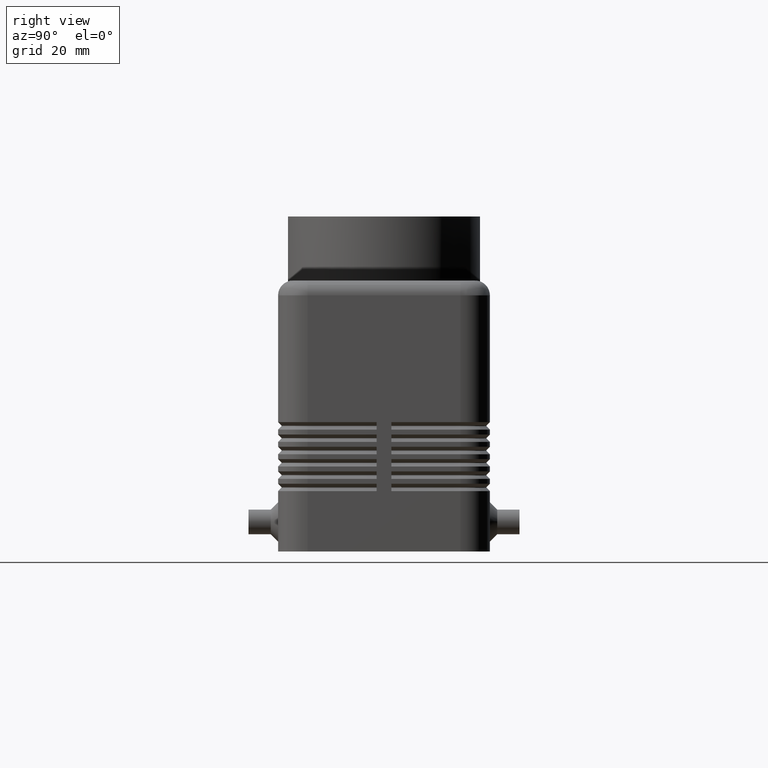
[diagram: clean part render]
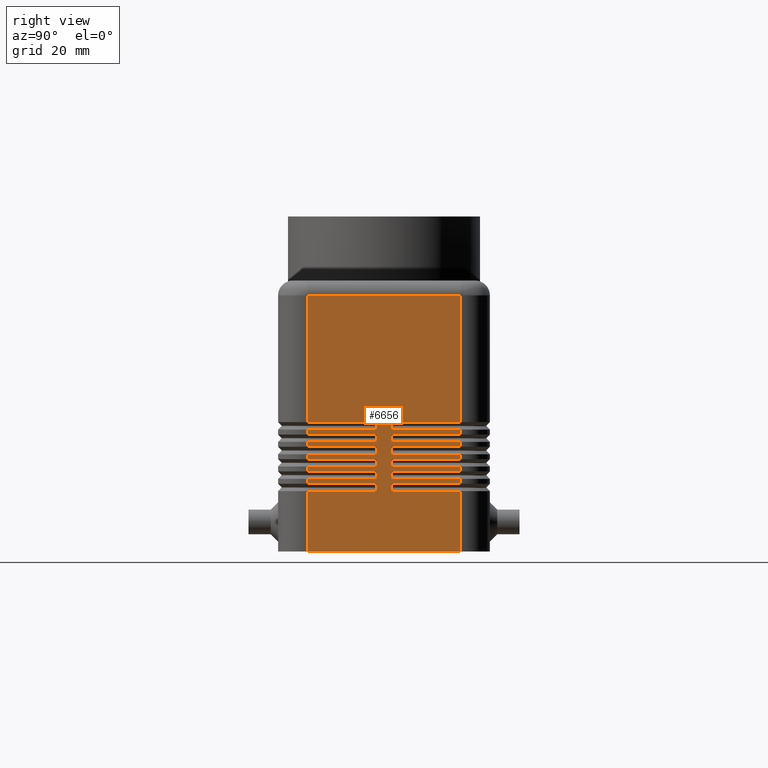
[diagram: same view with one face highlighted and labeled with its STEP entity id]
A machine part, right view. The second image highlights one B-rep face of the part: STEP entity #6656.
In plain terms, the highlighted planar face has unit normal (1, 0, 0).
Its self-contained STEP definition (entity closure, byte-faithful):
#241=CARTESIAN_POINT('',(60.0,-15.499999999999998,13.750000000000021));
#242=VERTEX_POINT('',#241);
#481=CARTESIAN_POINT('',(60.0,-15.499999999999998,16.250000000000021));
#482=VERTEX_POINT('',#481);
#709=CARTESIAN_POINT('',(60.0,-15.499999999999998,18.750000000000021));
#710=VERTEX_POINT('',#709);
#937=CARTESIAN_POINT('',(60.0,-15.499999999999998,21.250000000000021));
#938=VERTEX_POINT('',#937);
#1165=CARTESIAN_POINT('',(60.0,-15.499999999999998,23.750000000000021));
#1166=VERTEX_POINT('',#1165);
#1435=CARTESIAN_POINT('',(60.0,-15.499999999999998,26.250000000000021));
#1436=VERTEX_POINT('',#1435);
#1851=CARTESIAN_POINT('',(60.0,15.499999999999998,12.250000000000004));
#1852=VERTEX_POINT('',#1851);
#2413=CARTESIAN_POINT('',(60.0,15.499999999999998,14.750000000000021));
#2414=VERTEX_POINT('',#2413);
#2557=CARTESIAN_POINT('',(60.0,15.499999999999998,17.250000000000021));
#2558=VERTEX_POINT('',#2557);
#2701=CARTESIAN_POINT('',(60.0,15.499999999999998,19.750000000000018));
#2702=VERTEX_POINT('',#2701);
#2845=CARTESIAN_POINT('',(60.0,15.499999999999998,22.250000000000021));
#2846=VERTEX_POINT('',#2845);
#2999=CARTESIAN_POINT('',(60.0,15.499999999999998,24.750000000000021));
#3000=VERTEX_POINT('',#2999);
#4046=CARTESIAN_POINT('',(59.999999999999993,-15.499999999999998,52.0));
#4047=VERTEX_POINT('',#4046);
#4055=CARTESIAN_POINT('',(59.999999999999993,15.499999999999998,52.0));
#4056=VERTEX_POINT('',#4055);
#4057=CARTESIAN_POINT('',(59.999999999999993,-15.499999999999998,52.0));
#4058=DIRECTION('',(0.0,1.0,0.0));
#4059=VECTOR('',#4058,30.999999999999996);
#4060=LINE('',#4057,#4059);
#4061=EDGE_CURVE('',#4047,#4056,#4060,.T.);
#6255=CARTESIAN_POINT('',(60.0,15.499999999999998,26.250000000000004));
#6256=VERTEX_POINT('',#6255);
#6257=CARTESIAN_POINT('',(59.999999999999993,15.499999999999998,52.0));
#6258=DIRECTION('',(0.0,0.0,-1.0));
#6259=VECTOR('',#6258,25.749999999999996);
#6260=LINE('',#6257,#6259);
#6261=EDGE_CURVE('',#4056,#6256,#6260,.T.);
#6273=CARTESIAN_POINT('',(60.0,0.0,0.0));
#6274=DIRECTION('',(1.0,0.0,0.0));
#6275=DIRECTION('',(0.0,0.0,-1.0));
#6276=AXIS2_PLACEMENT_3D('',#6273,#6274,#6275);
#6277=PLANE('',#6276);
#6278=ORIENTED_EDGE('',*,*,#4061,.F.);
#6279=CARTESIAN_POINT('',(60.0,-15.499999999999998,26.250000000000021));
#6280=DIRECTION('',(0.0,0.0,1.0));
#6281=VECTOR('',#6280,25.749999999999979);
#6282=LINE('',#6279,#6281);
#6283=EDGE_CURVE('',#1436,#4047,#6282,.T.);
#6284=ORIENTED_EDGE('',*,*,#6283,.F.);
#6285=CARTESIAN_POINT('',(60.0,-1.500000000000000,26.250000000000004));
#6286=VERTEX_POINT('',#6285);
#6287=CARTESIAN_POINT('',(60.0,-1.500000000000000,26.250000000000004));
#6288=DIRECTION('',(0.0,-1.0,0.0));
#6289=VECTOR('',#6288,13.999999999999998);
#6290=LINE('',#6287,#6289);
#6291=EDGE_CURVE('',#6286,#1436,#6290,.T.);
#6292=ORIENTED_EDGE('',*,*,#6291,.F.);
#6293=CARTESIAN_POINT('',(60.0,-1.500000000000000,24.750000000000007));
#6294=VERTEX_POINT('',#6293);
#6295=CARTESIAN_POINT('',(60.0,-1.500000000000000,24.750000000000007));
#6296=DIRECTION('',(0.0,0.0,1.0));
#6297=VECTOR('',#6296,1.499999999999996);
#6298=LINE('',#6295,#6297);
#6299=EDGE_CURVE('',#6294,#6286,#6298,.T.);
#6300=ORIENTED_EDGE('',*,*,#6299,.F.);
#6301=CARTESIAN_POINT('',(60.0,-15.499999999999998,24.750000000000021));
#6302=VERTEX_POINT('',#6301);
#6303=CARTESIAN_POINT('',(60.0,-15.499999999999998,24.750000000000021));
#6304=DIRECTION('',(0.0,1.0,0.0));
#6305=VECTOR('',#6304,13.999999999999998);
#6306=LINE('',#6303,#6305);
#6307=EDGE_CURVE('',#6302,#6294,#6306,.T.);
#6308=ORIENTED_EDGE('',*,*,#6307,.F.);
#6309=CARTESIAN_POINT('',(60.0,-15.499999999999998,23.750000000000021));
#6310=DIRECTION('',(0.0,0.0,1.0));
#6311=VECTOR('',#6310,1.0);
#6312=LINE('',#6309,#6311);
#6313=EDGE_CURVE('',#1166,#6302,#6312,.T.);
#6314=ORIENTED_EDGE('',*,*,#6313,.F.);
#6315=CARTESIAN_POINT('',(60.0,-1.500000000000000,23.750000000000004));
#6316=VERTEX_POINT('',#6315);
#6317=CARTESIAN_POINT('',(60.0,-1.500000000000000,23.750000000000004));
#6318=DIRECTION('',(0.0,-1.0,0.0));
#6319=VECTOR('',#6318,13.999999999999998);
#6320=LINE('',#6317,#6319);
#6321=EDGE_CURVE('',#6316,#1166,#6320,.T.);
#6322=ORIENTED_EDGE('',*,*,#6321,.F.);
#6323=CARTESIAN_POINT('',(60.0,-1.500000000000000,22.250000000000007));
#6324=VERTEX_POINT('',#6323);
#6325=CARTESIAN_POINT('',(60.0,-1.500000000000000,22.250000000000007));
#6326=DIRECTION('',(0.0,0.0,1.0));
#6327=VECTOR('',#6326,1.499999999999996);
#6328=LINE('',#6325,#6327);
#6329=EDGE_CURVE('',#6324,#6316,#6328,.T.);
#6330=ORIENTED_EDGE('',*,*,#6329,.F.);
#6331=CARTESIAN_POINT('',(60.0,-15.499999999999998,22.250000000000021));
#6332=VERTEX_POINT('',#6331);
#6333=CARTESIAN_POINT('',(60.0,-15.499999999999998,22.250000000000021));
#6334=DIRECTION('',(0.0,1.0,0.0));
#6335=VECTOR('',#6334,13.999999999999998);
#6336=LINE('',#6333,#6335);
#6337=EDGE_CURVE('',#6332,#6324,#6336,.T.);
#6338=ORIENTED_EDGE('',*,*,#6337,.F.);
#6339=CARTESIAN_POINT('',(60.0,-15.499999999999998,21.250000000000021));
#6340=DIRECTION('',(0.0,0.0,1.0));
#6341=VECTOR('',#6340,1.0);
#6342=LINE('',#6339,#6341);
#6343=EDGE_CURVE('',#938,#6332,#6342,.T.);
#6344=ORIENTED_EDGE('',*,*,#6343,.F.);
#6345=CARTESIAN_POINT('',(60.0,-1.500000000000000,21.250000000000004));
#6346=VERTEX_POINT('',#6345);
#6347=CARTESIAN_POINT('',(60.0,-1.500000000000000,21.250000000000004));
#6348=DIRECTION('',(0.0,-1.0,0.0));
#6349=VECTOR('',#6348,13.999999999999998);
#6350=LINE('',#6347,#6349);
#6351=EDGE_CURVE('',#6346,#938,#6350,.T.);
#6352=ORIENTED_EDGE('',*,*,#6351,.F.);
#6353=CARTESIAN_POINT('',(60.0,-1.500000000000000,19.750000000000004));
#6354=VERTEX_POINT('',#6353);
#6355=CARTESIAN_POINT('',(60.0,-1.500000000000000,19.750000000000004));
#6356=DIRECTION('',(0.0,0.0,1.0));
#6357=VECTOR('',#6356,1.500000000000000);
#6358=LINE('',#6355,#6357);
#6359=EDGE_CURVE('',#6354,#6346,#6358,.T.);
#6360=ORIENTED_EDGE('',*,*,#6359,.F.);
#6361=CARTESIAN_POINT('',(60.0,-15.499999999999998,19.750000000000018));
#6362=VERTEX_POINT('',#6361);
#6363=CARTESIAN_POINT('',(60.0,-15.499999999999998,19.750000000000018));
#6364=DIRECTION('',(0.0,1.0,0.0));
#6365=VECTOR('',#6364,13.999999999999998);
#6366=LINE('',#6363,#6365);
#6367=EDGE_CURVE('',#6362,#6354,#6366,.T.);
#6368=ORIENTED_EDGE('',*,*,#6367,.F.);
#6369=CARTESIAN_POINT('',(60.0,-15.499999999999998,18.750000000000021));
#6370=DIRECTION('',(0.0,0.0,1.0));
#6371=VECTOR('',#6370,0.999999999999996);
#6372=LINE('',#6369,#6371);
#6373=EDGE_CURVE('',#710,#6362,#6372,.T.);
#6374=ORIENTED_EDGE('',*,*,#6373,.F.);
#6375=CARTESIAN_POINT('',(60.0,-1.500000000000000,18.750000000000004));
#6376=VERTEX_POINT('',#6375);
#6377=CARTESIAN_POINT('',(60.0,-1.500000000000000,18.750000000000004));
#6378=DIRECTION('',(0.0,-1.0,0.0));
#6379=VECTOR('',#6378,13.999999999999998);
#6380=LINE('',#6377,#6379);
#6381=EDGE_CURVE('',#6376,#710,#6380,.T.);
#6382=ORIENTED_EDGE('',*,*,#6381,.F.);
#6383=CARTESIAN_POINT('',(60.0,-1.500000000000000,17.250000000000004));
#6384=VERTEX_POINT('',#6383);
#6385=CARTESIAN_POINT('',(60.0,-1.500000000000000,17.250000000000004));
#6386=DIRECTION('',(0.0,0.0,1.0));
#6387=VECTOR('',#6386,1.500000000000000);
#6388=LINE('',#6385,#6387);
#6389=EDGE_CURVE('',#6384,#6376,#6388,.T.);
#6390=ORIENTED_EDGE('',*,*,#6389,.F.);
#6391=CARTESIAN_POINT('',(60.0,-15.499999999999998,17.250000000000021));
#6392=VERTEX_POINT('',#6391);
#6393=CARTESIAN_POINT('',(60.0,-15.499999999999998,17.250000000000021));
#6394=DIRECTION('',(0.0,1.0,0.0));
#6395=VECTOR('',#6394,13.999999999999998);
#6396=LINE('',#6393,#6395);
#6397=EDGE_CURVE('',#6392,#6384,#6396,.T.);
#6398=ORIENTED_EDGE('',*,*,#6397,.F.);
#6399=CARTESIAN_POINT('',(60.0,-15.499999999999998,16.250000000000021));
#6400=DIRECTION('',(0.0,0.0,1.0));
#6401=VECTOR('',#6400,1.0);
#6402=LINE('',#6399,#6401);
#6403=EDGE_CURVE('',#482,#6392,#6402,.T.);
#6404=ORIENTED_EDGE('',*,*,#6403,.F.);
#6405=CARTESIAN_POINT('',(60.0,-1.500000000000000,16.250000000000004));
#6406=VERTEX_POINT('',#6405);
#6407=CARTESIAN_POINT('',(60.0,-1.500000000000000,16.250000000000004));
#6408=DIRECTION('',(0.0,-1.0,0.0));
#6409=VECTOR('',#6408,13.999999999999998);
#6410=LINE('',#6407,#6409);
#6411=EDGE_CURVE('',#6406,#482,#6410,.T.);
#6412=ORIENTED_EDGE('',*,*,#6411,.F.);
#6413=CARTESIAN_POINT('',(60.0,-1.500000000000000,14.750000000000004));
#6414=VERTEX_POINT('',#6413);
#6415=CARTESIAN_POINT('',(60.0,-1.500000000000000,14.750000000000004));
#6416=DIRECTION('',(0.0,0.0,1.0));
#6417=VECTOR('',#6416,1.500000000000000);
#6418=LINE('',#6415,#6417);
#6419=EDGE_CURVE('',#6414,#6406,#6418,.T.);
#6420=ORIENTED_EDGE('',*,*,#6419,.F.);
#6421=CARTESIAN_POINT('',(60.0,-15.499999999999998,14.750000000000021));
#6422=VERTEX_POINT('',#6421);
#6423=CARTESIAN_POINT('',(60.0,-15.499999999999998,14.750000000000021));
#6424=DIRECTION('',(0.0,1.0,0.0));
#6425=VECTOR('',#6424,13.999999999999998);
#6426=LINE('',#6423,#6425);
#6427=EDGE_CURVE('',#6422,#6414,#6426,.T.);
#6428=ORIENTED_EDGE('',*,*,#6427,.F.);
#6429=CARTESIAN_POINT('',(60.0,-15.499999999999998,13.750000000000021));
#6430=DIRECTION('',(0.0,0.0,1.0));
#6431=VECTOR('',#6430,1.0);
#6432=LINE('',#6429,#6431);
#6433=EDGE_CURVE('',#242,#6422,#6432,.T.);
#6434=ORIENTED_EDGE('',*,*,#6433,.F.);
#6435=CARTESIAN_POINT('',(60.0,-1.500000000000000,13.750000000000004));
#6436=VERTEX_POINT('',#6435);
#6437=CARTESIAN_POINT('',(60.0,-1.500000000000000,13.750000000000004));
#6438=DIRECTION('',(0.0,-1.0,0.0));
#6439=VECTOR('',#6438,13.999999999999998);
#6440=LINE('',#6437,#6439);
#6441=EDGE_CURVE('',#6436,#242,#6440,.T.);
#6442=ORIENTED_EDGE('',*,*,#6441,.F.);
#6443=CARTESIAN_POINT('',(60.0,-1.500000000000000,12.250000000000004));
#6444=VERTEX_POINT('',#6443);
#6445=CARTESIAN_POINT('',(60.0,-1.500000000000000,12.250000000000004));
#6446=DIRECTION('',(0.0,0.0,1.0));
#6447=VECTOR('',#6446,1.500000000000000);
#6448=LINE('',#6445,#6447);
#6449=EDGE_CURVE('',#6444,#6436,#6448,.T.);
#6450=ORIENTED_EDGE('',*,*,#6449,.F.);
#6451=CARTESIAN_POINT('',(60.0,-15.499999999999998,12.250000000000021));
#6452=VERTEX_POINT('',#6451);
#6453=CARTESIAN_POINT('',(60.0,-15.499999999999998,12.250000000000021));
#6454=DIRECTION('',(0.0,1.0,0.0));
#6455=VECTOR('',#6454,13.999999999999998);
#6456=LINE('',#6453,#6455);
#6457=EDGE_CURVE('',#6452,#6444,#6456,.T.);
#6458=ORIENTED_EDGE('',*,*,#6457,.F.);
#6459=CARTESIAN_POINT('',(60.0,-15.499999999999998,0.0));
#6460=VERTEX_POINT('',#6459);
#6461=CARTESIAN_POINT('',(60.0,-15.499999999999998,0.0));
#6462=DIRECTION('',(0.0,0.0,1.0));
#6463=VECTOR('',#6462,12.250000000000021);
#6464=LINE('',#6461,#6463);
#6465=EDGE_CURVE('',#6460,#6452,#6464,.T.);
#6466=ORIENTED_EDGE('',*,*,#6465,.F.);
#6467=CARTESIAN_POINT('',(60.0,15.499999999999998,0.0));
#6468=VERTEX_POINT('',#6467);
#6469=CARTESIAN_POINT('',(60.0,15.499999999999998,0.0));
#6470=DIRECTION('',(0.0,-1.0,0.0));
#6471=VECTOR('',#6470,30.999999999999996);
#6472=LINE('',#6469,#6471);
#6473=EDGE_CURVE('',#6468,#6460,#6472,.T.);
#6474=ORIENTED_EDGE('',*,*,#6473,.F.);
#6475=CARTESIAN_POINT('',(60.0,15.499999999999998,12.250000000000004));
#6476=DIRECTION('',(0.0,0.0,-1.0));
#6477=VECTOR('',#6476,12.250000000000004);
#6478=LINE('',#6475,#6477);
#6479=EDGE_CURVE('',#1852,#6468,#6478,.T.);
#6480=ORIENTED_EDGE('',*,*,#6479,.F.);
#6481=CARTESIAN_POINT('',(60.0,1.500000000000000,12.250000000000004));
#6482=VERTEX_POINT('',#6481);
#6483=CARTESIAN_POINT('',(60.0,1.500000000000000,12.250000000000004));
#6484=DIRECTION('',(0.0,1.0,0.0));
#6485=VECTOR('',#6484,13.999999999999998);
#6486=LINE('',#6483,#6485);
#6487=EDGE_CURVE('',#6482,#1852,#6486,.T.);
#6488=ORIENTED_EDGE('',*,*,#6487,.F.);
#6489=CARTESIAN_POINT('',(60.0,1.500000000000000,13.750000000000004));
#6490=VERTEX_POINT('',#6489);
#6491=CARTESIAN_POINT('',(60.0,1.500000000000000,13.750000000000004));
#6492=DIRECTION('',(0.0,0.0,-1.0));
#6493=VECTOR('',#6492,1.500000000000000);
#6494=LINE('',#6491,#6493);
#6495=EDGE_CURVE('',#6490,#6482,#6494,.T.);
#6496=ORIENTED_EDGE('',*,*,#6495,.F.);
#6497=CARTESIAN_POINT('',(60.0,15.499999999999998,13.750000000000004));
#6498=VERTEX_POINT('',#6497);
#6499=CARTESIAN_POINT('',(60.0,15.499999999999998,13.750000000000004));
#6500=DIRECTION('',(0.0,-1.0,0.0));
#6501=VECTOR('',#6500,13.999999999999998);
#6502=LINE('',#6499,#6501);
#6503=EDGE_CURVE('',#6498,#6490,#6502,.T.);
#6504=ORIENTED_EDGE('',*,*,#6503,.F.);
#6505=CARTESIAN_POINT('',(60.0,15.499999999999998,14.750000000000021));
#6506=DIRECTION('',(0.0,0.0,-1.0));
#6507=VECTOR('',#6506,1.000000000000018);
#6508=LINE('',#6505,#6507);
#6509=EDGE_CURVE('',#2414,#6498,#6508,.T.);
#6510=ORIENTED_EDGE('',*,*,#6509,.F.);
#6511=CARTESIAN_POINT('',(60.0,1.500000000000000,14.750000000000004));
#6512=VERTEX_POINT('',#6511);
#6513=CARTESIAN_POINT('',(60.0,1.500000000000000,14.750000000000004));
#6514=DIRECTION('',(0.0,1.0,0.0));
#6515=VECTOR('',#6514,13.999999999999998);
#6516=LINE('',#6513,#6515);
#6517=EDGE_CURVE('',#6512,#2414,#6516,.T.);
#6518=ORIENTED_EDGE('',*,*,#6517,.F.);
#6519=CARTESIAN_POINT('',(60.0,1.500000000000000,16.250000000000004));
#6520=VERTEX_POINT('',#6519);
#6521=CARTESIAN_POINT('',(60.0,1.500000000000000,16.250000000000004));
#6522=DIRECTION('',(0.0,0.0,-1.0));
#6523=VECTOR('',#6522,1.500000000000000);
#6524=LINE('',#6521,#6523);
#6525=EDGE_CURVE('',#6520,#6512,#6524,.T.);
#6526=ORIENTED_EDGE('',*,*,#6525,.F.);
#6527=CARTESIAN_POINT('',(60.0,15.499999999999998,16.250000000000004));
#6528=VERTEX_POINT('',#6527);
#6529=CARTESIAN_POINT('',(60.0,15.499999999999998,16.250000000000004));
#6530=DIRECTION('',(0.0,-1.0,0.0));
#6531=VECTOR('',#6530,13.999999999999998);
#6532=LINE('',#6529,#6531);
#6533=EDGE_CURVE('',#6528,#6520,#6532,.T.);
#6534=ORIENTED_EDGE('',*,*,#6533,.F.);
#6535=CARTESIAN_POINT('',(60.0,15.499999999999998,17.250000000000021));
#6536=DIRECTION('',(0.0,0.0,-1.0));
#6537=VECTOR('',#6536,1.000000000000018);
#6538=LINE('',#6535,#6537);
#6539=EDGE_CURVE('',#2558,#6528,#6538,.T.);
#6540=ORIENTED_EDGE('',*,*,#6539,.F.);
#6541=CARTESIAN_POINT('',(60.0,1.500000000000000,17.250000000000004));
#6542=VERTEX_POINT('',#6541);
#6543=CARTESIAN_POINT('',(60.0,1.500000000000000,17.250000000000004));
#6544=DIRECTION('',(0.0,1.0,0.0));
#6545=VECTOR('',#6544,13.999999999999998);
#6546=LINE('',#6543,#6545);
#6547=EDGE_CURVE('',#6542,#2558,#6546,.T.);
#6548=ORIENTED_EDGE('',*,*,#6547,.F.);
#6549=CARTESIAN_POINT('',(60.0,1.500000000000000,18.750000000000004));
#6550=VERTEX_POINT('',#6549);
#6551=CARTESIAN_POINT('',(60.0,1.500000000000000,18.750000000000004));
#6552=DIRECTION('',(0.0,0.0,-1.0));
#6553=VECTOR('',#6552,1.500000000000000);
#6554=LINE('',#6551,#6553);
#6555=EDGE_CURVE('',#6550,#6542,#6554,.T.);
#6556=ORIENTED_EDGE('',*,*,#6555,.F.);
#6557=CARTESIAN_POINT('',(60.0,15.499999999999998,18.750000000000004));
#6558=VERTEX_POINT('',#6557);
#6559=CARTESIAN_POINT('',(60.0,15.499999999999998,18.750000000000004));
#6560=DIRECTION('',(0.0,-1.0,0.0));
#6561=VECTOR('',#6560,13.999999999999998);
#6562=LINE('',#6559,#6561);
#6563=EDGE_CURVE('',#6558,#6550,#6562,.T.);
#6564=ORIENTED_EDGE('',*,*,#6563,.F.);
#6565=CARTESIAN_POINT('',(60.0,15.499999999999998,19.750000000000018));
#6566=DIRECTION('',(0.0,0.0,-1.0));
#6567=VECTOR('',#6566,1.000000000000014);
#6568=LINE('',#6565,#6567);
#6569=EDGE_CURVE('',#2702,#6558,#6568,.T.);
#6570=ORIENTED_EDGE('',*,*,#6569,.F.);
#6571=CARTESIAN_POINT('',(60.0,1.500000000000000,19.750000000000004));
#6572=VERTEX_POINT('',#6571);
#6573=CARTESIAN_POINT('',(60.0,1.500000000000000,19.750000000000004));
#6574=DIRECTION('',(0.0,1.0,0.0));
#6575=VECTOR('',#6574,13.999999999999998);
#6576=LINE('',#6573,#6575);
#6577=EDGE_CURVE('',#6572,#2702,#6576,.T.);
#6578=ORIENTED_EDGE('',*,*,#6577,.F.);
#6579=CARTESIAN_POINT('',(60.0,1.500000000000000,21.250000000000004));
#6580=VERTEX_POINT('',#6579);
#6581=CARTESIAN_POINT('',(60.0,1.500000000000000,21.250000000000004));
#6582=DIRECTION('',(0.0,0.0,-1.0));
#6583=VECTOR('',#6582,1.500000000000000);
#6584=LINE('',#6581,#6583);
#6585=EDGE_CURVE('',#6580,#6572,#6584,.T.);
#6586=ORIENTED_EDGE('',*,*,#6585,.F.);
#6587=CARTESIAN_POINT('',(60.0,15.499999999999998,21.250000000000004));
#6588=VERTEX_POINT('',#6587);
#6589=CARTESIAN_POINT('',(60.0,15.499999999999998,21.250000000000004));
#6590=DIRECTION('',(0.0,-1.0,0.0));
#6591=VECTOR('',#6590,13.999999999999998);
#6592=LINE('',#6589,#6591);
#6593=EDGE_CURVE('',#6588,#6580,#6592,.T.);
#6594=ORIENTED_EDGE('',*,*,#6593,.F.);
#6595=CARTESIAN_POINT('',(60.0,15.499999999999998,22.250000000000021));
#6596=DIRECTION('',(0.0,0.0,-1.0));
#6597=VECTOR('',#6596,1.000000000000018);
#6598=LINE('',#6595,#6597);
#6599=EDGE_CURVE('',#2846,#6588,#6598,.T.);
#6600=ORIENTED_EDGE('',*,*,#6599,.F.);
#6601=CARTESIAN_POINT('',(60.0,1.500000000000000,22.250000000000007));
#6602=VERTEX_POINT('',#6601);
#6603=CARTESIAN_POINT('',(60.0,1.500000000000000,22.250000000000007));
#6604=DIRECTION('',(0.0,1.0,0.0));
#6605=VECTOR('',#6604,13.999999999999998);
#6606=LINE('',#6603,#6605);
#6607=EDGE_CURVE('',#6602,#2846,#6606,.T.);
#6608=ORIENTED_EDGE('',*,*,#6607,.F.);
#6609=CARTESIAN_POINT('',(60.0,1.500000000000000,23.750000000000004));
#6610=VERTEX_POINT('',#6609);
#6611=CARTESIAN_POINT('',(60.0,1.500000000000000,23.750000000000004));
#6612=DIRECTION('',(0.0,0.0,-1.0));
#6613=VECTOR('',#6612,1.499999999999996);
#6614=LINE('',#6611,#6613);
#6615=EDGE_CURVE('',#6610,#6602,#6614,.T.);
#6616=ORIENTED_EDGE('',*,*,#6615,.F.);
#6617=CARTESIAN_POINT('',(60.0,15.499999999999998,23.750000000000004));
#6618=VERTEX_POINT('',#6617);
#6619=CARTESIAN_POINT('',(60.0,15.499999999999998,23.750000000000004));
#6620=DIRECTION('',(0.0,-1.0,0.0));
#6621=VECTOR('',#6620,13.999999999999998);
#6622=LINE('',#6619,#6621);
#6623=EDGE_CURVE('',#6618,#6610,#6622,.T.);
#6624=ORIENTED_EDGE('',*,*,#6623,.F.);
#6625=CARTESIAN_POINT('',(60.0,15.499999999999998,24.750000000000021));
#6626=DIRECTION('',(0.0,0.0,-1.0));
#6627=VECTOR('',#6626,1.000000000000018);
#6628=LINE('',#6625,#6627);
#6629=EDGE_CURVE('',#3000,#6618,#6628,.T.);
#6630=ORIENTED_EDGE('',*,*,#6629,.F.);
#6631=CARTESIAN_POINT('',(60.0,1.500000000000000,24.750000000000007));
#6632=VERTEX_POINT('',#6631);
#6633=CARTESIAN_POINT('',(60.0,1.500000000000000,24.750000000000007));
#6634=DIRECTION('',(0.0,1.0,0.0));
#6635=VECTOR('',#6634,13.999999999999998);
#6636=LINE('',#6633,#6635);
#6637=EDGE_CURVE('',#6632,#3000,#6636,.T.);
#6638=ORIENTED_EDGE('',*,*,#6637,.F.);
#6639=CARTESIAN_POINT('',(60.0,1.500000000000000,26.250000000000004));
#6640=VERTEX_POINT('',#6639);
#6641=CARTESIAN_POINT('',(60.0,1.500000000000000,26.250000000000004));
#6642=DIRECTION('',(0.0,0.0,-1.0));
#6643=VECTOR('',#6642,1.499999999999996);
#6644=LINE('',#6641,#6643);
#6645=EDGE_CURVE('',#6640,#6632,#6644,.T.);
#6646=ORIENTED_EDGE('',*,*,#6645,.F.);
#6647=CARTESIAN_POINT('',(60.0,15.499999999999998,26.250000000000004));
#6648=DIRECTION('',(0.0,-1.0,0.0));
#6649=VECTOR('',#6648,13.999999999999998);
#6650=LINE('',#6647,#6649);
#6651=EDGE_CURVE('',#6256,#6640,#6650,.T.);
#6652=ORIENTED_EDGE('',*,*,#6651,.F.);
#6653=ORIENTED_EDGE('',*,*,#6261,.F.);
#6654=EDGE_LOOP('',(#6278,#6284,#6292,#6300,#6308,#6314,#6322,#6330,#6338,#6344,#6352,#6360,#6368,#6374,#6382,#6390,#6398,#6404,#6412,#6420,#6428,#6434,#6442,#6450,#6458,#6466,#6474,#6480,#6488,#6496,#6504,#6510,#6518,#6526,#6534,#6540,#6548,#6556,#6564,#6570,#6578,#6586,#6594,#6600,#6608,#6616,#6624,#6630,#6638,#6646,#6652,#6653));
#6655=FACE_OUTER_BOUND('',#6654,.T.);
#6656=ADVANCED_FACE('',(#6655),#6277,.T.);